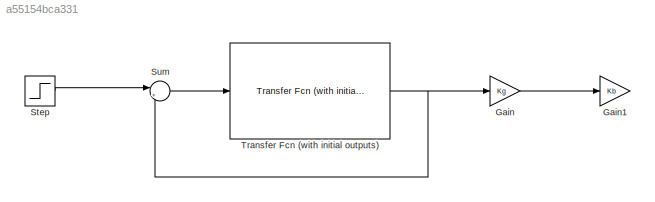
MODEL slx_a55154bca331
KIND model
CONFIG AbsTol = auto
CONFIG EnableMultiTasking = off
CONFIG FixedStep = auto
CONFIG MaxStep = auto
CONFIG MinStep = auto
CONFIG RelTol = 1e-3
CONFIG SampleTimeConstraint = Unconstrained
CONFIG SolverName = VariableStepAuto
CONFIG StartTime = 0.0
CONFIG StopTime = 0.1
WORKSPACE source: mxarray member
WORKSPACE Kb: Simulink.Parameter (value not decoded)
WORKSPACE Ke: Simulink.Parameter (value not decoded)
WORKSPACE Kg: Simulink.Parameter (value not decoded)
WORKSPACE Kt: Simulink.Parameter (value not decoded)
WORKSPACE L: Simulink.Parameter (value not decoded)
WORKSPACE R: Simulink.Parameter (value not decoded)
WORKSPACE Te: Simulink.Parameter (value not decoded)
WORKSPACE Tm: Simulink.Parameter (value not decoded)
BLOCK [Gain] Gain
  Gain = Kg
BLOCK [Gain] Gain1
  Gain = Kb
BLOCK [Step] Step
  After = 50
  SampleTime = 0
  Time = 0
BLOCK [Sum] Sum
  Inputs = |+-
  Ports = [2, 1]
BLOCK [Reference] Transfer Fcn (with initial outputs)  REF=simulink_extras/Additional
Linear/Transfer Fcn
(with initial outputs)
  Ports = [1, 1]
  SourceBlock = simulink_extras/Additional\nLinear/Transfer Fcn\n(with initial outputs)
  SourceProductBaseCode = SL
  SourceType = Transfer Function with Initial Outputs
LINE Gain:1 -> Gain1:1
LINE Step:1 -> Sum:1
LINE Sum:1 -> Transfer Fcn (with initial outputs):1
NET Transfer Fcn (with initial outputs):1 -> Gain:1, Sum:2
note: NET lines group one-source signal fan-out (src -> all destinations, sorted); 1:1 wires keep LINE
